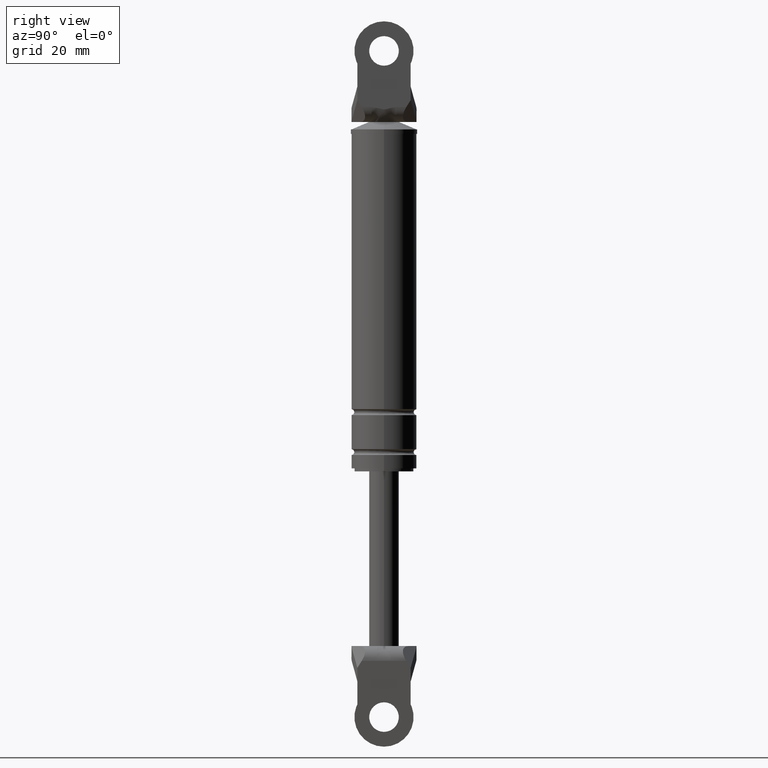
[diagram: clean part render]
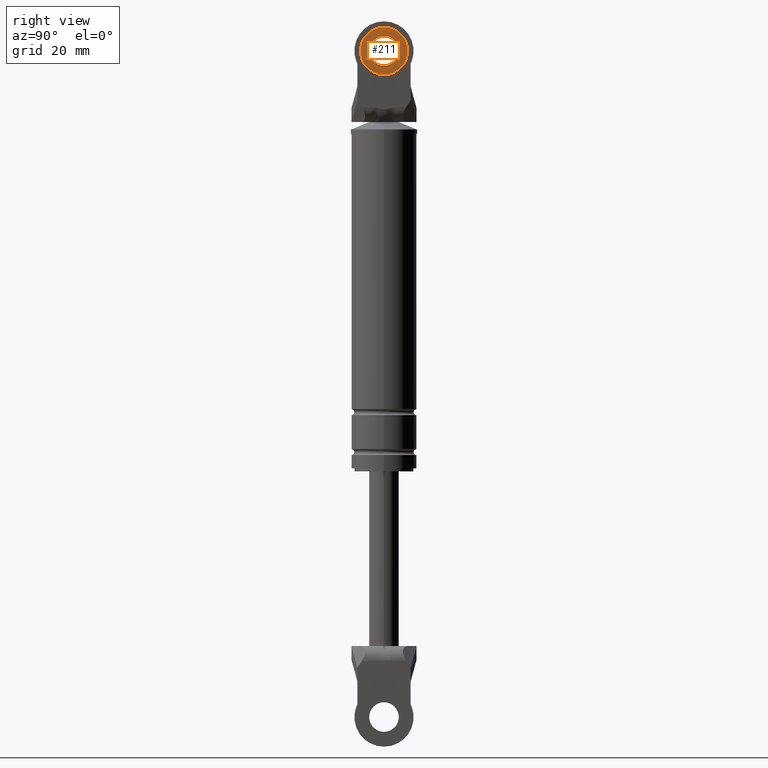
[diagram: same view with one face highlighted and labeled with its STEP entity id]
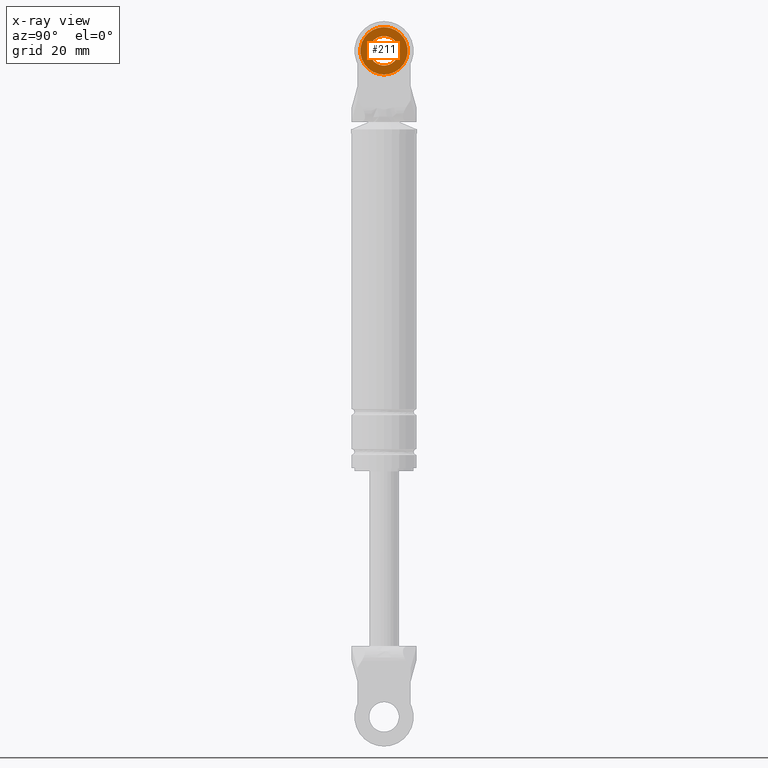
[diagram: x-ray of the same camera — body ghosted, the highlighted face saturated]
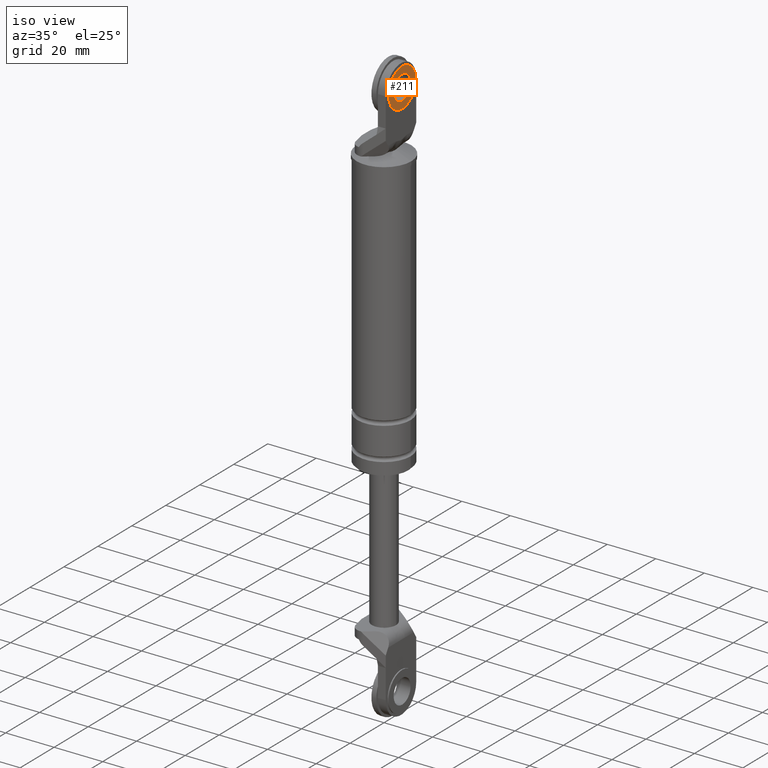
[diagram: same view with one face highlighted and labeled with its STEP entity id]
A machine part, right view. The second image highlights one B-rep face of the part: STEP entity #211.
The next image is the same camera in x-ray: the body ghosted, the highlighted face saturated — about 0% of this face is hidden behind the body in this view.
A second angle (iso view) of the same face is appended — the face is thin or edge-on in the first view.
In plain terms, the highlighted planar face has unit normal (-1, 0, 0).
Its self-contained STEP definition (entity closure, byte-faithful):
#211=ADVANCED_FACE('',(#361,#362),#360,.F.);
#360=PLANE('',#1169);
#361=FACE_OUTER_BOUND('',#1170,.T.);
#362=FACE_BOUND('',#1171,.T.);
#1166=CARTESIAN_POINT('',(6.24999840000E+001,-1.66276877527E+001,2.63400000000E+002));
#1167=DIRECTION('',(-1.00000000000E+000,0.00000000000E+000,0.00000000000E+000));
#1168=DIRECTION('',(0.00000000000E+000,1.00000000000E+000,0.00000000000E+000));
#1169=AXIS2_PLACEMENT_3D('',#1166,#1167,#1168);
#1170=EDGE_LOOP('',(#1808,#1809));
#1171=EDGE_LOOP('',(#1810,#1811));
#1808=ORIENTED_EDGE('',*,*,#2196,.T.);
#1809=ORIENTED_EDGE('',*,*,#2197,.T.);
#1810=ORIENTED_EDGE('',*,*,#2198,.F.);
#1811=ORIENTED_EDGE('',*,*,#2199,.F.);
#2196=EDGE_CURVE('',#2488,#2489,#2490,.T.);
#2197=EDGE_CURVE('',#2489,#2488,#2496,.T.);
#2198=EDGE_CURVE('',#2502,#2503,#2504,.T.);
#2199=EDGE_CURVE('',#2503,#2502,#2510,.T.);
#2488=VERTEX_POINT('',#3776);
#2489=VERTEX_POINT('',#3777);
#2490=CIRCLE('',#3781,8.00000000000E+000);
#2496=CIRCLE('',#3785,8.00000000000E+000);
#2502=VERTEX_POINT('',#3786);
#2503=VERTEX_POINT('',#3787);
#2504=CIRCLE('',#3791,5.00000000000E+000);
#2510=CIRCLE('',#3795,5.00000000000E+000);
#3776=CARTESIAN_POINT('',(6.24999840000E+001,-2.84217094304E-014,2.61000000000E+002));
#3777=CARTESIAN_POINT('',(6.24999840000E+001,-2.69414120642E-014,2.45000000000E+002));
#3778=CARTESIAN_POINT('',(6.24999840000E+001,-2.84217094304E-014,2.53000000000E+002));
#3779=DIRECTION('',(1.00000000000E+000,0.00000000000E+000,-0.00000000000E+000));
#3780=DIRECTION('',(0.00000000000E+000,-1.22460635382E-016,1.00000000000E+000));
#3781=AXIS2_PLACEMENT_3D('',#3778,#3779,#3780);
#3782=CARTESIAN_POINT('',(6.24999840000E+001,-2.84217094304E-014,2.53000000000E+002));
#3783=DIRECTION('',(1.00000000000E+000,0.00000000000E+000,-0.00000000000E+000));
#3784=DIRECTION('',(0.00000000000E+000,-1.22460635382E-016,1.00000000000E+000));
#3785=AXIS2_PLACEMENT_3D('',#3782,#3783,#3784);
#3786=CARTESIAN_POINT('',(6.24999840000E+001,-5.21064672891E-014,2.48000000000E+002));
#3787=CARTESIAN_POINT('',(6.24999840000E+001,-5.68434188608E-014,2.58000000000E+002));
#3788=CARTESIAN_POINT('',(6.24999840000E+001,-5.68434188608E-014,2.53000000000E+002));
#3789=DIRECTION('',(1.00000000000E+000,0.00000000000E+000,-0.00000000000E+000));
#3790=DIRECTION('',(0.00000000000E+000,-1.22460635382E-016,1.00000000000E+000));
#3791=AXIS2_PLACEMENT_3D('',#3788,#3789,#3790);
#3792=CARTESIAN_POINT('',(6.24999840000E+001,-5.68434188608E-014,2.53000000000E+002));
#3793=DIRECTION('',(1.00000000000E+000,0.00000000000E+000,-0.00000000000E+000));
#3794=DIRECTION('',(0.00000000000E+000,-1.22460635382E-016,1.00000000000E+000));
#3795=AXIS2_PLACEMENT_3D('',#3792,#3793,#3794);